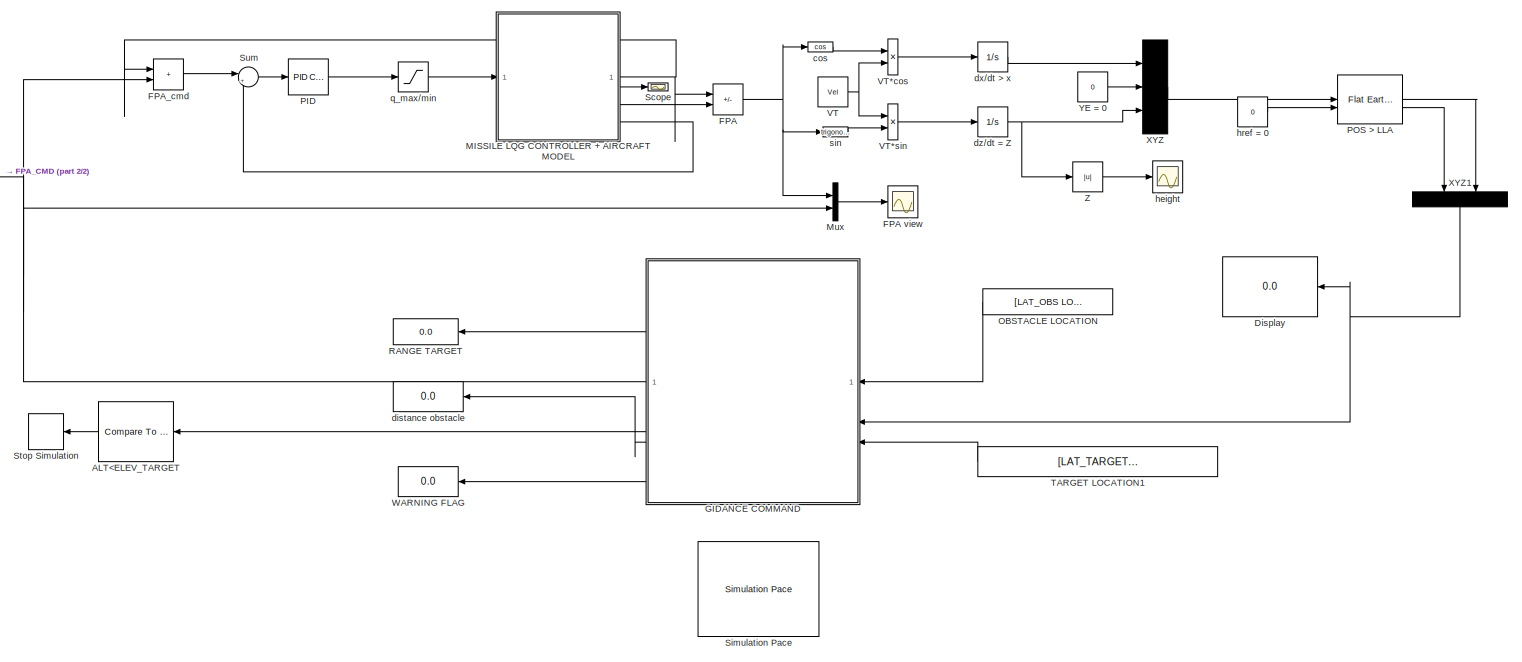
[diagram: root canvas - part 1/2, most of the canvas]
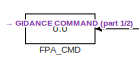
[diagram: root canvas - part 2/2, top left region]
MODEL slx_7107b944f470
KIND model
CONFIG AbsTol = auto
CONFIG EnableMultiTasking = off
CONFIG FixedStep = auto
CONFIG MaxStep = auto
CONFIG MinStep = auto
CONFIG RelTol = 1e-3
CONFIG SampleTimeConstraint = Unconstrained
CONFIG SolverName = VariableStepAuto
CONFIG StartTime = 0.0
CONFIG StopTime = 10.0
BLOCK [Reference] ALT<ELEV_TARGET  REF=simulink/Logic and Bit
Operations/Compare
To Constant
  NameLocation = top
  SourceBlock = simulink/Logic and Bit\nOperations/Compare\nTo Constant
  SourceType = Compare To Constant
BLOCK [Display] Display
  Decimation = 1
  NameLocation = top
BLOCK [Sum] FPA
  IconShape = rectangular
  Inputs = -+
BLOCK [Scope] FPA view
  Floating = off
  NumInputPorts = 1
  ScopeSpecificationString = Simulink.scopes.TimeScopeBlockCfg('CurrentConfiguration', extmgr.ConfigurationSet(extmgr.Configuration('Core','General UI',true),extmgr.Configuration('Core','Source UI',true),extmgr.Configuration('Sources','WiredSimulink',true,'DataLoggingVariableName','ScopeData1'),extmgr.Configuration('Visuals','Time Domain',true,'SerializedDisplays',{struct('MinYLimReal','-0.19763','MaxYLimReal','1.77183','YLab...<+1412ch>
BLOCK [Display] FPA_CMD
  Decimation = 1
  NameLocation = top
BLOCK [Sum] FPA_cmd
  IconShape = rectangular
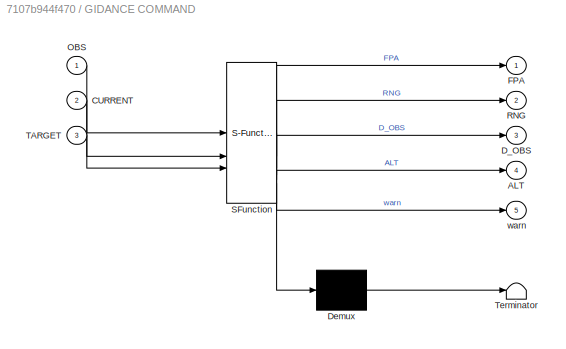
BLOCK [SubSystem] GIDANCE COMMAND
  ErrorFcn = Stateflow.Translate.translate
  LibrarySourceBlock = simulink/User-Defined\nFunctions/MATLAB Function
  NameLocation = top
  PermitHierarchicalResolution = ExplicitOnly
  SFBlockType = MATLAB Function
  TreatAsAtomicUnit = on
BLOCK [Demux] GIDANCE COMMAND/ Demux 
  Outputs = 1
BLOCK [S-Function] GIDANCE COMMAND/ SFunction 
  EnableBusSupport = on
  FunctionName = sf_sfun
  PortCounts = [3 6]
  SFcnIsStateOwnerBlock = off
  SFunctionDeploymentMode = off
  Tag = Stateflow S-Function 2
BLOCK [Terminator] GIDANCE COMMAND/ Terminator 
BLOCK [Outport] GIDANCE COMMAND/ALT
  Port = 4
BLOCK [Inport] GIDANCE COMMAND/CURRENT
  Port = 2
BLOCK [Outport] GIDANCE COMMAND/D_OBS
  Port = 3
BLOCK [Outport] GIDANCE COMMAND/FPA
BLOCK [Inport] GIDANCE COMMAND/OBS
BLOCK [Outport] GIDANCE COMMAND/RNG
  Port = 2
BLOCK [Inport] GIDANCE COMMAND/TARGET
  Port = 3
BLOCK [Outport] GIDANCE COMMAND/warn
  Port = 5
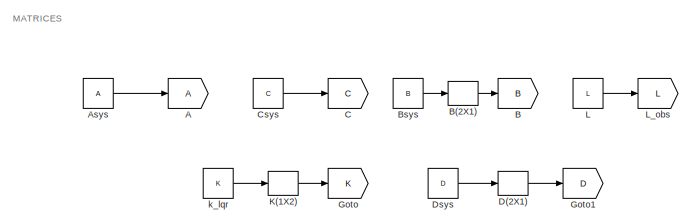
[diagram: MISSILE LQG CONTROLLER + AIRCRAFT MODEL   - part 1/4, top center region]
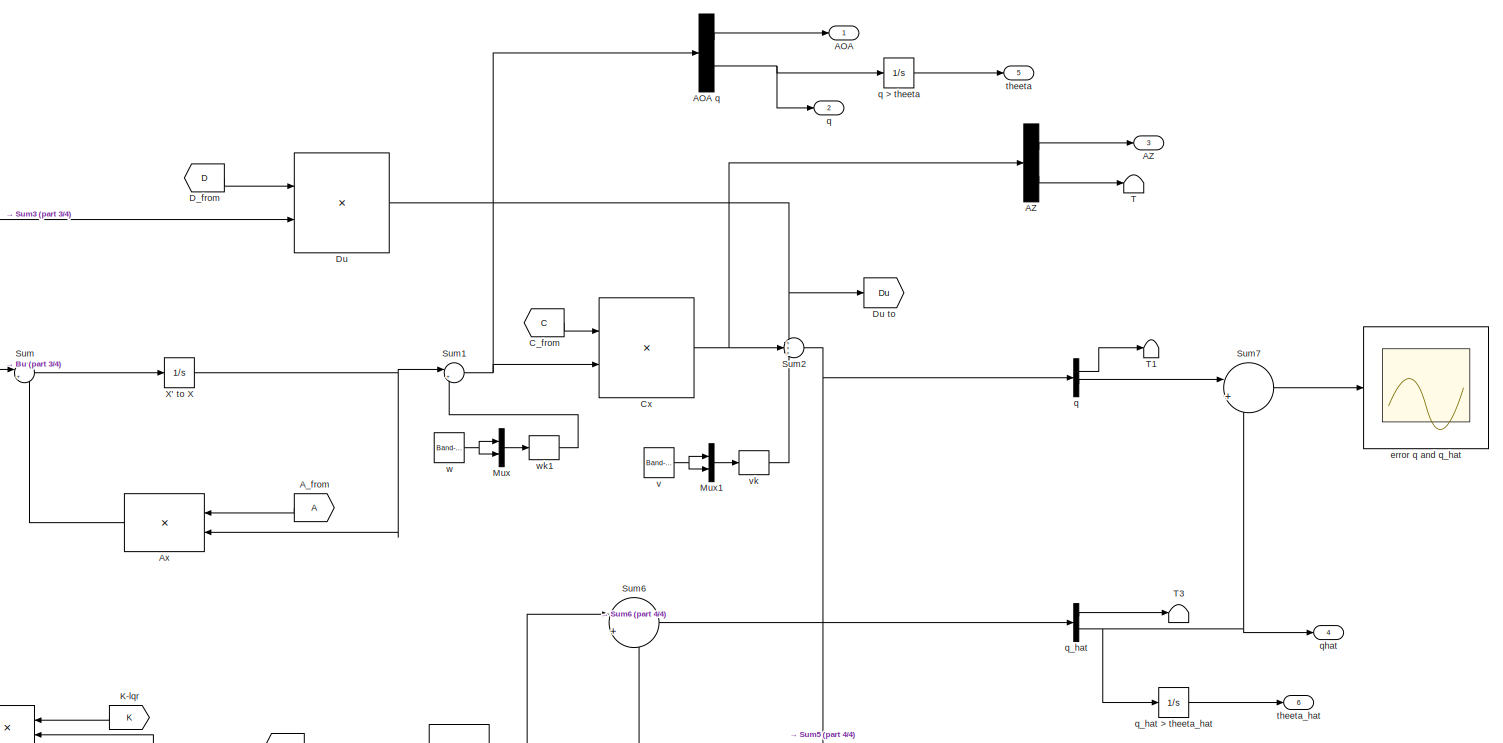
[diagram: MISSILE LQG CONTROLLER + AIRCRAFT MODEL   - part 2/4, middle right region]
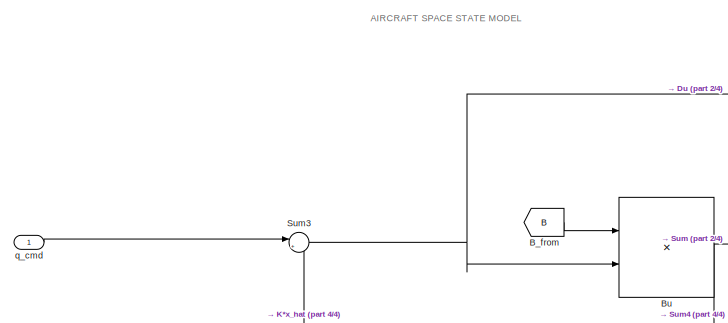
[diagram: MISSILE LQG CONTROLLER + AIRCRAFT MODEL   - part 3/4, middle left region]
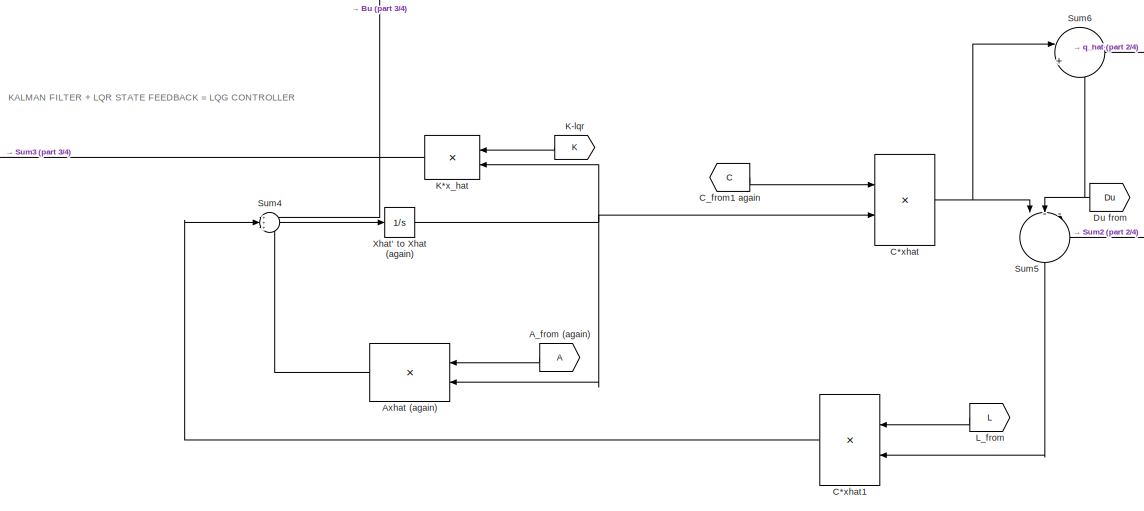
[diagram: MISSILE LQG CONTROLLER + AIRCRAFT MODEL   - part 4/4, bottom center region]
BLOCK [SubSystem] MISSILE LQG CONTROLLER + AIRCRAFT MODEL  
BLOCK [Goto] MISSILE LQG CONTROLLER + AIRCRAFT MODEL  /A
BLOCK [Outport] MISSILE LQG CONTROLLER + AIRCRAFT MODEL  /AOA
BLOCK [Demux] MISSILE LQG CONTROLLER + AIRCRAFT MODEL  /AOA q
  Outputs = 2
BLOCK [Demux] MISSILE LQG CONTROLLER + AIRCRAFT MODEL  /AZ
  Outputs = 2
BLOCK [Outport] MISSILE LQG CONTROLLER + AIRCRAFT MODEL  /AZ  
  NameLocation = top
  Port = 3
BLOCK [From] MISSILE LQG CONTROLLER + AIRCRAFT MODEL  /A_from
  NameLocation = top
BLOCK [From] MISSILE LQG CONTROLLER + AIRCRAFT MODEL  /A_from (again)
  NameLocation = top
BLOCK [Constant] MISSILE LQG CONTROLLER + AIRCRAFT MODEL  /Asys
  Value = A
BLOCK [Product] MISSILE LQG CONTROLLER + AIRCRAFT MODEL  /Ax
  Multiplication = Matrix(*)
  NameLocation = top
BLOCK [Product] MISSILE LQG CONTROLLER + AIRCRAFT MODEL  /Axhat (again)
  Multiplication = Matrix(*)
  NameLocation = top
BLOCK [Goto] MISSILE LQG CONTROLLER + AIRCRAFT MODEL  /B
  GotoTag = B
BLOCK [Reshape] MISSILE LQG CONTROLLER + AIRCRAFT MODEL  /B(2X1)
  OutputDimensionality = Customize
  OutputDimensions = [2,1]
BLOCK [From] MISSILE LQG CONTROLLER + AIRCRAFT MODEL  /B_from
  GotoTag = B
BLOCK [Constant] MISSILE LQG CONTROLLER + AIRCRAFT MODEL  /Bsys
  Value = B
BLOCK [Product] MISSILE LQG CONTROLLER + AIRCRAFT MODEL  /Bu
  Multiplication = Matrix(*)
BLOCK [Goto] MISSILE LQG CONTROLLER + AIRCRAFT MODEL  /C
  GotoTag = C
BLOCK [Product] MISSILE LQG CONTROLLER + AIRCRAFT MODEL  /C*xhat
  Multiplication = Matrix(*)
BLOCK [Product] MISSILE LQG CONTROLLER + AIRCRAFT MODEL  /C*xhat1
  Multiplication = Matrix(*)
  NameLocation = top
BLOCK [From] MISSILE LQG CONTROLLER + AIRCRAFT MODEL  /C_from
  GotoTag = C
BLOCK [From] MISSILE LQG CONTROLLER + AIRCRAFT MODEL  /C_from1 again
  GotoTag = C
BLOCK [Constant] MISSILE LQG CONTROLLER + AIRCRAFT MODEL  /Csys
  Value = C
BLOCK [Product] MISSILE LQG CONTROLLER + AIRCRAFT MODEL  /Cx
  Multiplication = Matrix(*)
BLOCK [Reshape] MISSILE LQG CONTROLLER + AIRCRAFT MODEL  /D(2X1) 
  OutputDimensionality = Customize
  OutputDimensions = [2,1]
BLOCK [From] MISSILE LQG CONTROLLER + AIRCRAFT MODEL  /D_from
  GotoTag = D
BLOCK [Constant] MISSILE LQG CONTROLLER + AIRCRAFT MODEL  /Dsys
  Value = D
BLOCK [Product] MISSILE LQG CONTROLLER + AIRCRAFT MODEL  /Du
  Multiplication = Matrix(*)
BLOCK [From] MISSILE LQG CONTROLLER + AIRCRAFT MODEL  /Du from
  GotoTag = Du
  NameLocation = top
BLOCK [Goto] MISSILE LQG CONTROLLER + AIRCRAFT MODEL  /Du to
  GotoTag = Du
BLOCK [Goto] MISSILE LQG CONTROLLER + AIRCRAFT MODEL  /Goto
  GotoTag = K
BLOCK [Goto] MISSILE LQG CONTROLLER + AIRCRAFT MODEL  /Goto1
  GotoTag = D
BLOCK [Reshape] MISSILE LQG CONTROLLER + AIRCRAFT MODEL  /K(1X2)
  OutputDimensionality = Customize
  OutputDimensions = [1,2]
BLOCK [Product] MISSILE LQG CONTROLLER + AIRCRAFT MODEL  /K*x_hat
  Multiplication = Matrix(*)
  NameLocation = top
BLOCK [From] MISSILE LQG CONTROLLER + AIRCRAFT MODEL  /K-lqr
  GotoTag = K
  NameLocation = top
BLOCK [Constant] MISSILE LQG CONTROLLER + AIRCRAFT MODEL  /L
  Value = L
BLOCK [From] MISSILE LQG CONTROLLER + AIRCRAFT MODEL  /L_from
  GotoTag = L
  NameLocation = top
BLOCK [Goto] MISSILE LQG CONTROLLER + AIRCRAFT MODEL  /L_obs
  GotoTag = L
BLOCK [Mux] MISSILE LQG CONTROLLER + AIRCRAFT MODEL  /Mux
  DisplayOption = bar
  Inputs = 2
BLOCK [Mux] MISSILE LQG CONTROLLER + AIRCRAFT MODEL  /Mux1
  DisplayOption = bar
  Inputs = 2
BLOCK [Sum] MISSILE LQG CONTROLLER + AIRCRAFT MODEL  /Sum
  Inputs = |++
BLOCK [Sum] MISSILE LQG CONTROLLER + AIRCRAFT MODEL  /Sum1
  Inputs = |++
BLOCK [Sum] MISSILE LQG CONTROLLER + AIRCRAFT MODEL  /Sum2
  Inputs = +++
BLOCK [Sum] MISSILE LQG CONTROLLER + AIRCRAFT MODEL  /Sum3
  Inputs = |+-
BLOCK [Sum] MISSILE LQG CONTROLLER + AIRCRAFT MODEL  /Sum4
  Inputs = +++
BLOCK [Sum] MISSILE LQG CONTROLLER + AIRCRAFT MODEL  /Sum5
  Inputs = |--+
  NameLocation = left
BLOCK [Sum] MISSILE LQG CONTROLLER + AIRCRAFT MODEL  /Sum6
  Inputs = |++
BLOCK [Sum] MISSILE LQG CONTROLLER + AIRCRAFT MODEL  /Sum7
  Inputs = |+-
BLOCK [Terminator] MISSILE LQG CONTROLLER + AIRCRAFT MODEL  /T
BLOCK [Terminator] MISSILE LQG CONTROLLER + AIRCRAFT MODEL  /T1
BLOCK [Terminator] MISSILE LQG CONTROLLER + AIRCRAFT MODEL  /T3
BLOCK [Integrator] MISSILE LQG CONTROLLER + AIRCRAFT MODEL  /X' to X
BLOCK [Integrator] MISSILE LQG CONTROLLER + AIRCRAFT MODEL  /Xhat' to Xhat (again)
BLOCK [Scope] MISSILE LQG CONTROLLER + AIRCRAFT MODEL  /error q and q_hat
  Floating = off
  NumInputPorts = 1
  ScopeSpecificationString = Simulink.scopes.TimeScopeBlockCfg('CurrentConfiguration', extmgr.ConfigurationSet(extmgr.Configuration('Core','General UI',true),extmgr.Configuration('Core','Source UI',true),extmgr.Configuration('Sources','WiredSimulink',true),extmgr.Configuration('Visuals','Time Domain',true,'SerializedDisplays',{struct('MinYLimReal','-0.02017','MaxYLimReal','0.02144','YLabelReal','','MinYLimMag','0.00000','MaxY...<+1353ch>
BLOCK [Constant] MISSILE LQG CONTROLLER + AIRCRAFT MODEL  /k_lqr
  Value = K
BLOCK [Demux] MISSILE LQG CONTROLLER + AIRCRAFT MODEL  /q
  Outputs = 2
BLOCK [Outport] MISSILE LQG CONTROLLER + AIRCRAFT MODEL  /q  
  Port = 2
BLOCK [Integrator] MISSILE LQG CONTROLLER + AIRCRAFT MODEL  /q > theeta
BLOCK [Inport] MISSILE LQG CONTROLLER + AIRCRAFT MODEL  /q_cmd
BLOCK [Demux] MISSILE LQG CONTROLLER + AIRCRAFT MODEL  /q_hat
  Outputs = 2
BLOCK [Integrator] MISSILE LQG CONTROLLER + AIRCRAFT MODEL  /q_hat > theeta_hat
BLOCK [Outport] MISSILE LQG CONTROLLER + AIRCRAFT MODEL  /qhat  
  NameLocation = top
  Port = 4
BLOCK [Outport] MISSILE LQG CONTROLLER + AIRCRAFT MODEL  /theeta
  NameLocation = top
  Port = 5
BLOCK [Outport] MISSILE LQG CONTROLLER + AIRCRAFT MODEL  /theeta_hat  
  NameLocation = top
  Port = 6
BLOCK [Reference] MISSILE LQG CONTROLLER + AIRCRAFT MODEL  /v  REF=simulink/Sources/Band-Limited
White Noise
  SourceBlock = simulink/Sources/Band-Limited\nWhite Noise
  SourceType = Band-Limited White Noise.
BLOCK [Reshape] MISSILE LQG CONTROLLER + AIRCRAFT MODEL  /vk
  OutputDimensionality = Customize
  OutputDimensions = [2,1]
BLOCK [Reference] MISSILE LQG CONTROLLER + AIRCRAFT MODEL  /w  REF=simulink/Sources/Band-Limited
White Noise
  SourceBlock = simulink/Sources/Band-Limited\nWhite Noise
  SourceType = Band-Limited White Noise.
BLOCK [Reshape] MISSILE LQG CONTROLLER + AIRCRAFT MODEL  /wk1
  OutputDimensionality = Customize
  OutputDimensions = [2,1]
BLOCK [Mux] Mux
  DisplayOption = bar
  Inputs = 2
BLOCK [Constant] OBSTACLE LOCATION
  NameLocation = top
  Value = [LAT_OBS LON_OBS]
BLOCK [Reference] PID  REF=slpidlib/PID Controller
  LibrarySourceBlock = simulink/Continuous/PID Controller
  SourceBlock = slpidlib/PID Controller
  SourceType = PID 1dof
BLOCK [Reference] POS > LLA  REF=aerolibtransform2/Flat Earth to LLA
  SourceBlock = aerolibtransform2/Flat Earth to LLA
  SourceType = Flat Earth to LLA
BLOCK [Display] RANGE TARGET
  Decimation = 1
  NameLocation = top
BLOCK [Scope] Scope
  Floating = off
  NumInputPorts = 1
  ScopeSpecificationString = Simulink.scopes.TimeScopeBlockCfg('CurrentConfiguration', extmgr.ConfigurationSet(extmgr.Configuration('Core','General UI',true),extmgr.Configuration('Core','Source UI',true),extmgr.Configuration('Sources','WiredSimulink',true,'DataLoggingVariableName','ScopeData1'),extmgr.Configuration('Visuals','Time Domain',true,'SerializedDisplays',{struct('MinYLimReal','-0.34206','MaxYLimReal','1.21714','YLab...<+1430ch>
BLOCK [Reference] Simulation Pace  REF=aerolibanimutils/Simulation Pace
  AttributesFormatString = %<SleepMode>\n%<SimulationPace> sec/sec
  SourceBlock = aerolibanimutils/Simulation Pace
  SourceType = Simulation Pace
BLOCK [Stop] Stop Simulation
  NameLocation = top
BLOCK [Sum] Sum
  Inputs = |+-
BLOCK [Constant] TARGET LOCATION1
  NameLocation = top
  Value = [LAT_TARGET LON_TARGET ELEV_TARGET]
BLOCK [Constant] VT
  Value = Vel
BLOCK [Product] VT*cos
BLOCK [Product] VT*sin
BLOCK [Display] WARNING FLAG
  Decimation = 1
  NameLocation = top
BLOCK [Mux] XYZ
  DisplayOption = bar
  Inputs = 3
BLOCK [Mux] XYZ1
  DisplayOption = bar
  Inputs = 2
  NameLocation = left
BLOCK [Constant] YE = 0
  Value = 0
BLOCK [Abs] Z
  SaturateOnIntegerOverflow = off
BLOCK [Trigonometry] cos
  Operator = cos
BLOCK [Display] distance obstacle
  Decimation = 1
  NameLocation = top
BLOCK [Integrator] dx//dt > x
BLOCK [Integrator] dz//dt = Z
  InitialCondition = -ELEV_INIT
BLOCK [Scope] height
  Floating = off
  NumInputPorts = 1
  ScopeSpecificationString = Simulink.scopes.TimeScopeBlockCfg('CurrentConfiguration', extmgr.ConfigurationSet(extmgr.Configuration('Core','General UI',true),extmgr.Configuration('Core','Source UI',true),extmgr.Configuration('Sources','WiredSimulink',true,'DataLoggingVariableName','ScopeData2'),extmgr.Configuration('Visuals','Time Domain',true,'SerializedDisplays',{struct('MinYLimReal','116.85291','MaxYLimReal','11098.14821',...<+1411ch>
BLOCK [Constant] href = 0
  Value = 0
BLOCK [Saturate] q_max//min
BLOCK [Trigonometry] sin
ANNOTATION MISSILE LQG CONTROLLER + AIRCRAFT MODEL  : AIRCRAFT SPACE STATE MODEL
ANNOTATION MISSILE LQG CONTROLLER + AIRCRAFT MODEL  : KALMAN FILTER + LQR STATE FEEDBACK = LQG CONTROLLER
ANNOTATION MISSILE LQG CONTROLLER + AIRCRAFT MODEL  : MATRICES
LINE ALT<ELEV_TARGET:1 -> Stop Simulation:1
NET FPA:1 -> Mux:1, cos:1, sin:1
LINE FPA_cmd:1 -> Sum:1
NET GIDANCE COMMAND:1 -> FPA_CMD:1, FPA_cmd:2, Mux:2
LINE GIDANCE COMMAND:2 -> RANGE TARGET:1
LINE GIDANCE COMMAND:3 -> distance obstacle:1
LINE GIDANCE COMMAND:4 -> ALT<ELEV_TARGET:1
LINE GIDANCE COMMAND:5 -> WARNING FLAG:1
LINE MISSILE LQG CONTROLLER + AIRCRAFT MODEL  /AOA q:1 -> MISSILE LQG CONTROLLER + AIRCRAFT MODEL  /AOA:1
NET MISSILE LQG CONTROLLER + AIRCRAFT MODEL  /AOA q:2 -> MISSILE LQG CONTROLLER + AIRCRAFT MODEL  /q  :1, MISSILE LQG CONTROLLER + AIRCRAFT MODEL  /q > theeta:1
LINE MISSILE LQG CONTROLLER + AIRCRAFT MODEL  /AZ:1 -> MISSILE LQG CONTROLLER + AIRCRAFT MODEL  /AZ  :1
LINE MISSILE LQG CONTROLLER + AIRCRAFT MODEL  /AZ:2 -> MISSILE LQG CONTROLLER + AIRCRAFT MODEL  /T:1
LINE MISSILE LQG CONTROLLER + AIRCRAFT MODEL  /A_from (again):1 -> MISSILE LQG CONTROLLER + AIRCRAFT MODEL  /Axhat (again):1
LINE MISSILE LQG CONTROLLER + AIRCRAFT MODEL  /A_from:1 -> MISSILE LQG CONTROLLER + AIRCRAFT MODEL  /Ax:1
LINE MISSILE LQG CONTROLLER + AIRCRAFT MODEL  /Asys:1 -> MISSILE LQG CONTROLLER + AIRCRAFT MODEL  /A:1
LINE MISSILE LQG CONTROLLER + AIRCRAFT MODEL  /Ax:1 -> MISSILE LQG CONTROLLER + AIRCRAFT MODEL  /Sum:2
LINE MISSILE LQG CONTROLLER + AIRCRAFT MODEL  /Axhat (again):1 -> MISSILE LQG CONTROLLER + AIRCRAFT MODEL  /Sum4:3
LINE MISSILE LQG CONTROLLER + AIRCRAFT MODEL  /B(2X1):1 -> MISSILE LQG CONTROLLER + AIRCRAFT MODEL  /B:1
LINE MISSILE LQG CONTROLLER + AIRCRAFT MODEL  /B_from:1 -> MISSILE LQG CONTROLLER + AIRCRAFT MODEL  /Bu:1
LINE MISSILE LQG CONTROLLER + AIRCRAFT MODEL  /Bsys:1 -> MISSILE LQG CONTROLLER + AIRCRAFT MODEL  /B(2X1):1
NET MISSILE LQG CONTROLLER + AIRCRAFT MODEL  /Bu:1 -> MISSILE LQG CONTROLLER + AIRCRAFT MODEL  /Sum4:1, MISSILE LQG CONTROLLER + AIRCRAFT MODEL  /Sum:1
LINE MISSILE LQG CONTROLLER + AIRCRAFT MODEL  /C*xhat1:1 -> MISSILE LQG CONTROLLER + AIRCRAFT MODEL  /Sum4:2
NET MISSILE LQG CONTROLLER + AIRCRAFT MODEL  /C*xhat:1 -> MISSILE LQG CONTROLLER + AIRCRAFT MODEL  /Sum5:1, MISSILE LQG CONTROLLER + AIRCRAFT MODEL  /Sum6:1
LINE MISSILE LQG CONTROLLER + AIRCRAFT MODEL  /C_from1 again:1 -> MISSILE LQG CONTROLLER + AIRCRAFT MODEL  /C*xhat:1
LINE MISSILE LQG CONTROLLER + AIRCRAFT MODEL  /C_from:1 -> MISSILE LQG CONTROLLER + AIRCRAFT MODEL  /Cx:1
LINE MISSILE LQG CONTROLLER + AIRCRAFT MODEL  /Csys:1 -> MISSILE LQG CONTROLLER + AIRCRAFT MODEL  /C:1
NET MISSILE LQG CONTROLLER + AIRCRAFT MODEL  /Cx:1 -> MISSILE LQG CONTROLLER + AIRCRAFT MODEL  /AZ:1, MISSILE LQG CONTROLLER + AIRCRAFT MODEL  /Sum2:2
LINE MISSILE LQG CONTROLLER + AIRCRAFT MODEL  /D(2X1) :1 -> MISSILE LQG CONTROLLER + AIRCRAFT MODEL  /Goto1:1
LINE MISSILE LQG CONTROLLER + AIRCRAFT MODEL  /D_from:1 -> MISSILE LQG CONTROLLER + AIRCRAFT MODEL  /Du:1
LINE MISSILE LQG CONTROLLER + AIRCRAFT MODEL  /Dsys:1 -> MISSILE LQG CONTROLLER + AIRCRAFT MODEL  /D(2X1) :1
NET MISSILE LQG CONTROLLER + AIRCRAFT MODEL  /Du from:1 -> MISSILE LQG CONTROLLER + AIRCRAFT MODEL  /Sum5:2, MISSILE LQG CONTROLLER + AIRCRAFT MODEL  /Sum6:2
NET MISSILE LQG CONTROLLER + AIRCRAFT MODEL  /Du:1 -> MISSILE LQG CONTROLLER + AIRCRAFT MODEL  /Du to:1, MISSILE LQG CONTROLLER + AIRCRAFT MODEL  /Sum2:1
LINE MISSILE LQG CONTROLLER + AIRCRAFT MODEL  /K(1X2):1 -> MISSILE LQG CONTROLLER + AIRCRAFT MODEL  /Goto:1
LINE MISSILE LQG CONTROLLER + AIRCRAFT MODEL  /K*x_hat:1 -> MISSILE LQG CONTROLLER + AIRCRAFT MODEL  /Sum3:2
LINE MISSILE LQG CONTROLLER + AIRCRAFT MODEL  /K-lqr:1 -> MISSILE LQG CONTROLLER + AIRCRAFT MODEL  /K*x_hat:1
LINE MISSILE LQG CONTROLLER + AIRCRAFT MODEL  /L:1 -> MISSILE LQG CONTROLLER + AIRCRAFT MODEL  /L_obs:1
LINE MISSILE LQG CONTROLLER + AIRCRAFT MODEL  /L_from:1 -> MISSILE LQG CONTROLLER + AIRCRAFT MODEL  /C*xhat1:1
LINE MISSILE LQG CONTROLLER + AIRCRAFT MODEL  /Mux1:1 -> MISSILE LQG CONTROLLER + AIRCRAFT MODEL  /vk:1
LINE MISSILE LQG CONTROLLER + AIRCRAFT MODEL  /Mux:1 -> MISSILE LQG CONTROLLER + AIRCRAFT MODEL  /wk1:1
NET MISSILE LQG CONTROLLER + AIRCRAFT MODEL  /Sum1:1 -> MISSILE LQG CONTROLLER + AIRCRAFT MODEL  /AOA q:1, MISSILE LQG CONTROLLER + AIRCRAFT MODEL  /Cx:2
NET MISSILE LQG CONTROLLER + AIRCRAFT MODEL  /Sum2:1 -> MISSILE LQG CONTROLLER + AIRCRAFT MODEL  /Sum5:3, MISSILE LQG CONTROLLER + AIRCRAFT MODEL  /q:1
NET MISSILE LQG CONTROLLER + AIRCRAFT MODEL  /Sum3:1 -> MISSILE LQG CONTROLLER + AIRCRAFT MODEL  /Bu:2, MISSILE LQG CONTROLLER + AIRCRAFT MODEL  /Du:2
LINE MISSILE LQG CONTROLLER + AIRCRAFT MODEL  /Sum4:1 -> MISSILE LQG CONTROLLER + AIRCRAFT MODEL  /Xhat' to Xhat (again):1
LINE MISSILE LQG CONTROLLER + AIRCRAFT MODEL  /Sum5:1 -> MISSILE LQG CONTROLLER + AIRCRAFT MODEL  /C*xhat1:2
LINE MISSILE LQG CONTROLLER + AIRCRAFT MODEL  /Sum6:1 -> MISSILE LQG CONTROLLER + AIRCRAFT MODEL  /q_hat:1
LINE MISSILE LQG CONTROLLER + AIRCRAFT MODEL  /Sum7:1 -> MISSILE LQG CONTROLLER + AIRCRAFT MODEL  /error q and q_hat:1
LINE MISSILE LQG CONTROLLER + AIRCRAFT MODEL  /Sum:1 -> MISSILE LQG CONTROLLER + AIRCRAFT MODEL  /X' to X:1
NET MISSILE LQG CONTROLLER + AIRCRAFT MODEL  /X' to X:1 -> MISSILE LQG CONTROLLER + AIRCRAFT MODEL  /Ax:2, MISSILE LQG CONTROLLER + AIRCRAFT MODEL  /Sum1:1
NET MISSILE LQG CONTROLLER + AIRCRAFT MODEL  /Xhat' to Xhat (again):1 -> MISSILE LQG CONTROLLER + AIRCRAFT MODEL  /Axhat (again):2, MISSILE LQG CONTROLLER + AIRCRAFT MODEL  /C*xhat:2, MISSILE LQG CONTROLLER + AIRCRAFT MODEL  /K*x_hat:2
LINE MISSILE LQG CONTROLLER + AIRCRAFT MODEL  /k_lqr:1 -> MISSILE LQG CONTROLLER + AIRCRAFT MODEL  /K(1X2):1
LINE MISSILE LQG CONTROLLER + AIRCRAFT MODEL  /q > theeta:1 -> MISSILE LQG CONTROLLER + AIRCRAFT MODEL  /theeta:1
LINE MISSILE LQG CONTROLLER + AIRCRAFT MODEL  /q:1 -> MISSILE LQG CONTROLLER + AIRCRAFT MODEL  /T1:1
LINE MISSILE LQG CONTROLLER + AIRCRAFT MODEL  /q:2 -> MISSILE LQG CONTROLLER + AIRCRAFT MODEL  /Sum7:1
LINE MISSILE LQG CONTROLLER + AIRCRAFT MODEL  /q_cmd:1 -> MISSILE LQG CONTROLLER + AIRCRAFT MODEL  /Sum3:1
LINE MISSILE LQG CONTROLLER + AIRCRAFT MODEL  /q_hat > theeta_hat:1 -> MISSILE LQG CONTROLLER + AIRCRAFT MODEL  /theeta_hat  :1
LINE MISSILE LQG CONTROLLER + AIRCRAFT MODEL  /q_hat:1 -> MISSILE LQG CONTROLLER + AIRCRAFT MODEL  /T3:1
NET MISSILE LQG CONTROLLER + AIRCRAFT MODEL  /q_hat:2 -> MISSILE LQG CONTROLLER + AIRCRAFT MODEL  /Sum7:2, MISSILE LQG CONTROLLER + AIRCRAFT MODEL  /q_hat > theeta_hat:1, MISSILE LQG CONTROLLER + AIRCRAFT MODEL  /qhat  :1
NET MISSILE LQG CONTROLLER + AIRCRAFT MODEL  /v:1 -> MISSILE LQG CONTROLLER + AIRCRAFT MODEL  /Mux1:1, MISSILE LQG CONTROLLER + AIRCRAFT MODEL  /Mux1:2
LINE MISSILE LQG CONTROLLER + AIRCRAFT MODEL  /vk:1 -> MISSILE LQG CONTROLLER + AIRCRAFT MODEL  /Sum2:3
NET MISSILE LQG CONTROLLER + AIRCRAFT MODEL  /w:1 -> MISSILE LQG CONTROLLER + AIRCRAFT MODEL  /Mux:1, MISSILE LQG CONTROLLER + AIRCRAFT MODEL  /Mux:2
LINE MISSILE LQG CONTROLLER + AIRCRAFT MODEL  /wk1:1 -> MISSILE LQG CONTROLLER + AIRCRAFT MODEL  /Sum1:2
NET MISSILE LQG CONTROLLER + AIRCRAFT MODEL  :1 -> FPA:1, FPA_cmd:1
LINE MISSILE LQG CONTROLLER + AIRCRAFT MODEL  :4 -> Scope:1
LINE MISSILE LQG CONTROLLER + AIRCRAFT MODEL  :5 -> FPA:2
LINE MISSILE LQG CONTROLLER + AIRCRAFT MODEL  :6 -> Sum:2
LINE Mux:1 -> FPA view:1
LINE OBSTACLE LOCATION:1 -> GIDANCE COMMAND:1
LINE PID:1 -> q_max//min:1
LINE POS > LLA:1 -> XYZ1:2
LINE POS > LLA:2 -> XYZ1:1
LINE Sum:1 -> PID:1
LINE TARGET LOCATION1:1 -> GIDANCE COMMAND:3
LINE VT*cos:1 -> dx//dt > x:1
LINE VT*sin:1 -> dz//dt = Z:1
NET VT:1 -> VT*cos:2, VT*sin:1
NET XYZ1:1 -> Display:1, GIDANCE COMMAND:2
LINE XYZ:1 -> POS > LLA:1
LINE YE = 0:1 -> XYZ:2
LINE Z:1 -> height:1
LINE cos:1 -> VT*cos:1
LINE dx//dt > x:1 -> XYZ:1
NET dz//dt = Z:1 -> XYZ:3, Z:1
LINE href = 0:1 -> POS > LLA:2
LINE q_max//min:1 -> MISSILE LQG CONTROLLER + AIRCRAFT MODEL  :1
LINE sin:1 -> VT*sin:2
note: NET lines group one-source signal fan-out (src -> all destinations, sorted); 1:1 wires keep LINE
CHART GIDANCE COMMAND states=1 transitions=1
  STATE_LABEL 'eML_blk_kernel()'
  STATE_LABEL 'SCRIPT:\nfunction [FPA,RNG,D_OBS,ALT,warn] = fcn(OBS, CURRENT, TARGET)\n\n\nR = 6.371e3; \nd2r = pi/180;\n%OBSTACLE LOCATION\nLAT_OBS=OBS(1);\nLON_OBS=OBS(2);\n%OBSTACLE THRESHOLD (ZONE)\nthres=2000;\n%TARGET LOCATION\nLAT_TARGET=TARGET(1);\nLON_TARGET=TARGET(2);\nELEV_TARGET=TARGET(3)\n%CURRENT LOCATION\nELEV_CUR=CURRENT(1);\nLAT_CUR=CURRENT(2);\nLON_CUR=CURRENT(3);\n% % distance to target\nl1= LAT_CUR*d2r;\nu1 =LON_...<+745ch>'
CHART  states=0 transitions=0
